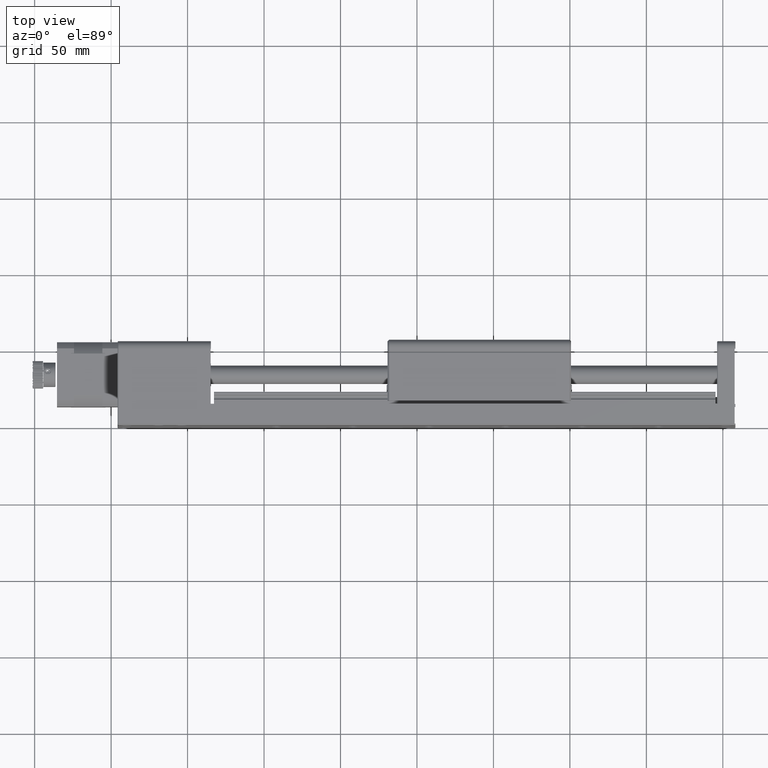
[diagram: clean part render]
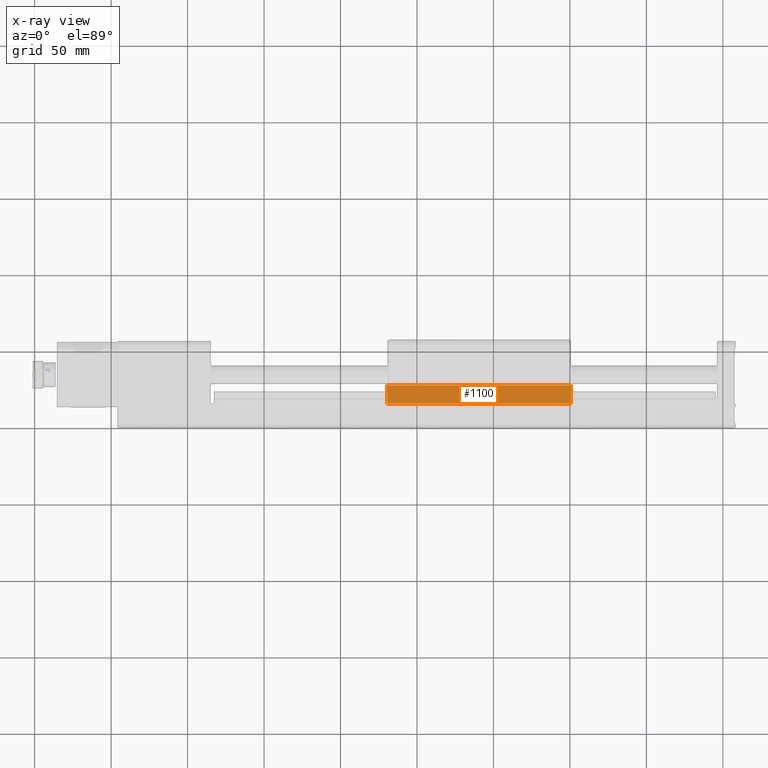
[diagram: x-ray — body ghosted, one internal face saturated and labeled with its STEP entity id]
A machine part, top view, then the same camera in x-ray: the body is ghosted and one INTERNAL B-rep face — a face not visible from any outside direction — is saturated and labeled: STEP entity #1100.
In plain terms, the highlighted planar face has unit normal (-0, -0, -1).
Its self-contained STEP definition (entity closure, byte-faithful):
#683 = CARTESIAN_POINT ( 'NONE',  ( -1019.231237573352800, 16.00000000001158200, -406.9134800466600300 ) ) ;
#1100 = ADVANCED_FACE ( 'NONE', ( #18673 ), #16518, .F. ) ;
#1807 = ORIENTED_EDGE ( 'NONE', *, *, #20853, .F. ) ;
#6724 = CARTESIAN_POINT ( 'NONE',  ( -899.2312375733527000, 28.00000000001158500, -406.9134800466612800 ) ) ;
#7301 = VECTOR ( 'NONE', #38481, 1000.000000000000000 ) ;
#8758 = VERTEX_POINT ( 'NONE', #683 ) ;
#8953 = CARTESIAN_POINT ( 'NONE',  ( -899.2312375733527000, 28.00000000001158500, -406.9134800466612800 ) ) ;
#15081 = ORIENTED_EDGE ( 'NONE', *, *, #25838, .T. ) ;
#15612 = EDGE_CURVE ( 'NONE', #45989, #36299, #26432, .T. ) ;
#16265 = CARTESIAN_POINT ( 'NONE',  ( -899.2312375733527000, 28.00000000001158500, -406.9134800466612800 ) ) ;
#16518 = PLANE ( 'NONE',  #45556 ) ;
#18446 = VECTOR ( 'NONE', #43323, 1000.000000000000000 ) ;
#18673 = FACE_OUTER_BOUND ( 'NONE', #22388, .T. ) ;
#20853 = EDGE_CURVE ( 'NONE', #30791, #45989, #22286, .T. ) ;
#20992 = CARTESIAN_POINT ( 'NONE',  ( -1019.231237573352800, 28.00000000001158500, -406.9134800466600300 ) ) ;
#22286 = LINE ( 'NONE', #16265, #41363 ) ;
#22388 = EDGE_LOOP ( 'NONE', ( #15081, #36826, #1807, #24141 ) ) ;
#24141 = ORIENTED_EDGE ( 'NONE', *, *, #37915, .T. ) ;
#25838 = EDGE_CURVE ( 'NONE', #8758, #36299, #29428, .T. ) ;
#26432 = LINE ( 'NONE', #39366, #18446 ) ;
#28351 = DIRECTION ( 'NONE',  ( -1.075822733343127700E-014, -1.221245327087672000E-015, -1.000000000000000000 ) ) ;
#29428 = LINE ( 'NONE', #30868, #7301 ) ;
#30791 = VERTEX_POINT ( 'NONE', #50016 ) ;
#30868 = CARTESIAN_POINT ( 'NONE',  ( -899.2312375733527000, 16.00000000001158200, -406.9134800466612800 ) ) ;
#32827 = DIRECTION ( 'NONE',  ( 7.670429091803931400E-018, -1.000000000000000000, 1.221245327087672000E-015 ) ) ;
#34434 = CARTESIAN_POINT ( 'NONE',  ( -899.2312375733527000, 16.00000000001158200, -406.9134800466612800 ) ) ;
#36299 = VERTEX_POINT ( 'NONE', #34434 ) ;
#36826 = ORIENTED_EDGE ( 'NONE', *, *, #15612, .F. ) ;
#37683 = LINE ( 'NONE', #20992, #48727 ) ;
#37915 = EDGE_CURVE ( 'NONE', #30791, #8758, #37683, .T. ) ;
#38481 = DIRECTION ( 'NONE',  ( 1.000000000000000000, 7.670429091789869000E-018, -1.075822733343127700E-014 ) ) ;
#39366 = CARTESIAN_POINT ( 'NONE',  ( -899.2312375733527000, 28.00000000001158500, -406.9134800466612800 ) ) ;
#40503 = DIRECTION ( 'NONE',  ( 1.000000000000000000, 7.670429091789869000E-018, -1.075822733343127700E-014 ) ) ;
#41363 = VECTOR ( 'NONE', #40503, 1000.000000000000000 ) ;
#43323 = DIRECTION ( 'NONE',  ( 7.670429091803931400E-018, -1.000000000000000000, 1.221245327087672000E-015 ) ) ;
#45556 = AXIS2_PLACEMENT_3D ( 'NONE', #8953, #28351, #48135 ) ;
#45989 = VERTEX_POINT ( 'NONE', #6724 ) ;
#48135 = DIRECTION ( 'NONE',  ( -7.670429091803931400E-018, 1.000000000000000000, -1.221245327087672000E-015 ) ) ;
#48727 = VECTOR ( 'NONE', #32827, 1000.000000000000000 ) ;
#50016 = CARTESIAN_POINT ( 'NONE',  ( -1019.231237573352800, 28.00000000001158500, -406.9134800466600300 ) ) ;